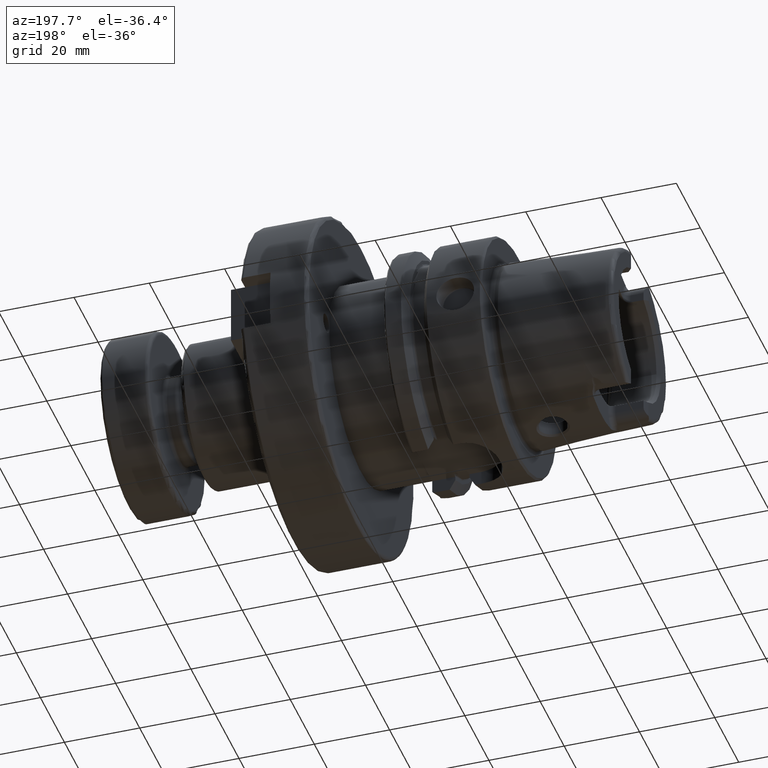
[diagram: clean part render]
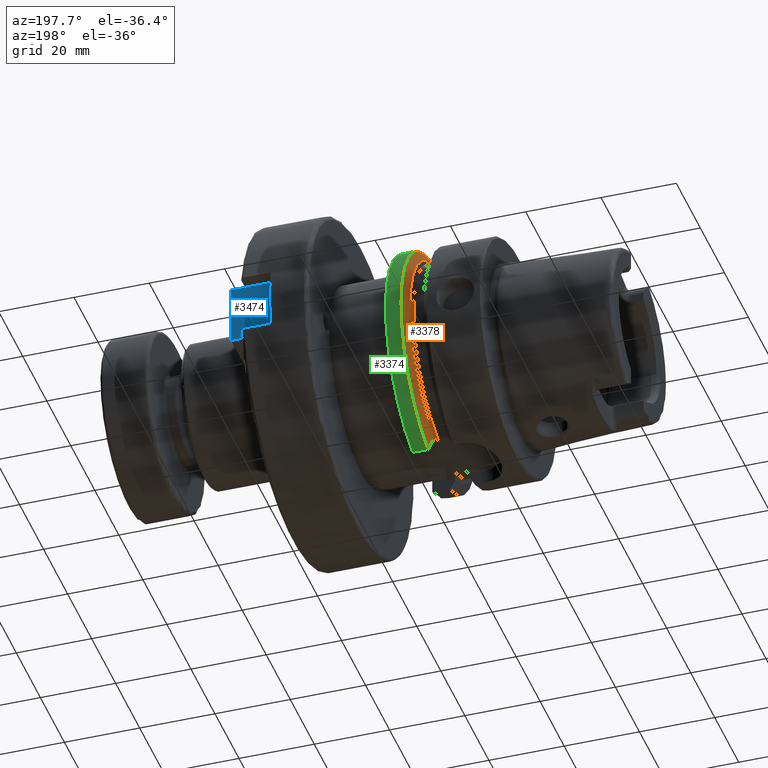
[diagram: same view with three faces highlighted in distinct colors, each labeled with its STEP entity id]
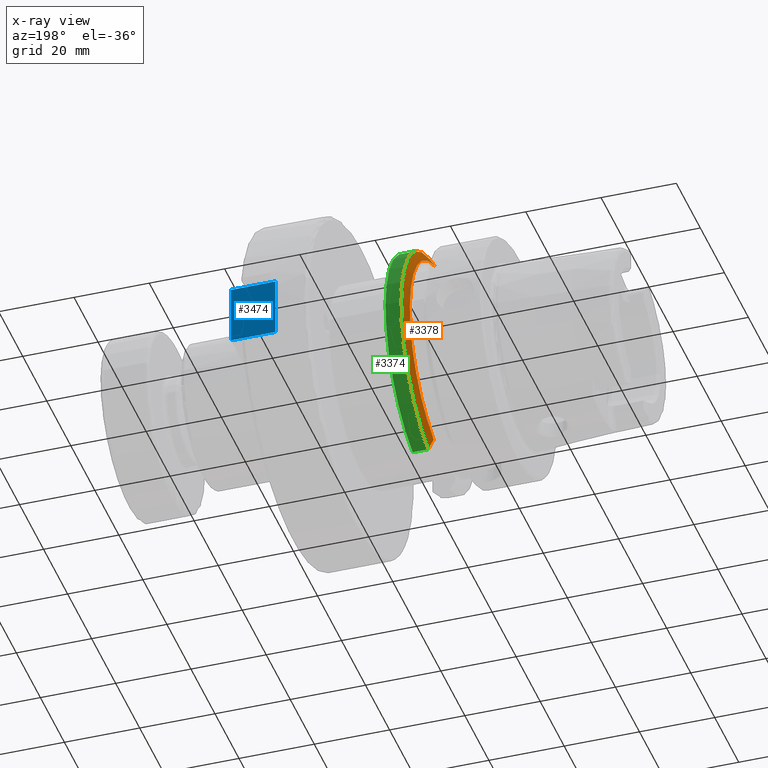
[diagram: x-ray of the same camera — body ghosted, the three highlighted faces saturated]
A machine part, auxiliary view with three faces highlighted in distinct colors.
The next image is the same camera in x-ray (body ghosted, the three faces saturated) — at least one of them is partly hidden behind the body in this view.
Their STEP definitions:

[orange] entity #3378 — the highlighted conical surface has half-angle 60 deg.
#62=(
BOUNDED_CURVE()
B_SPLINE_CURVE(2,(#6473,#6474,#6475),.UNSPECIFIED.,.F.,.F.)
B_SPLINE_CURVE_WITH_KNOTS((3,3),(0.,0.311314369989023),.UNSPECIFIED.)
CURVE()
GEOMETRIC_REPRESENTATION_ITEM()
RATIONAL_B_SPLINE_CURVE((1.,1.00102053193238,1.))
REPRESENTATION_ITEM('')
);
#65=(
BOUNDED_CURVE()
B_SPLINE_CURVE(2,(#6670,#6671,#6672),.UNSPECIFIED.,.F.,.F.)
B_SPLINE_CURVE_WITH_KNOTS((3,3),(0.,0.308905667770379),.UNSPECIFIED.)
CURVE()
GEOMETRIC_REPRESENTATION_ITEM()
RATIONAL_B_SPLINE_CURVE((1.,1.00099999355179,1.))
REPRESENTATION_ITEM('')
);
#99=CONICAL_SURFACE('',#3810,30.1987976320958,1.0471975511966);
#342=CIRCLE('',#3803,31.5);
#346=CIRCLE('',#3811,28.8975952641916);
#543=FACE_OUTER_BOUND('',#760,.T.);
#760=EDGE_LOOP('',(#2698,#2699,#2700,#2701));
#1527=VERTEX_POINT('',#6470);
#1528=VERTEX_POINT('',#6472);
#1554=VERTEX_POINT('',#6654);
#1557=VERTEX_POINT('',#6668);
#1933=EDGE_CURVE('',#1528,#1527,#62,.T.);
#1973=EDGE_CURVE('',#1528,#1554,#342,.T.);
#1980=EDGE_CURVE('',#1527,#1557,#346,.T.);
#1981=EDGE_CURVE('',#1557,#1554,#65,.T.);
#2698=ORIENTED_EDGE('',*,*,#1933,.T.);
#2699=ORIENTED_EDGE('',*,*,#1980,.T.);
#2700=ORIENTED_EDGE('',*,*,#1981,.T.);
#2701=ORIENTED_EDGE('',*,*,#1973,.F.);
#3378=ADVANCED_FACE('',(#543),#99,.T.);
#3803=AXIS2_PLACEMENT_3D('',#6655,#4558,#4559);
#3810=AXIS2_PLACEMENT_3D('',#6667,#4575,#4576);
#3811=AXIS2_PLACEMENT_3D('',#6669,#4577,#4578);
#4558=DIRECTION('center_axis',(1.,0.,0.));
#4559=DIRECTION('ref_axis',(0.,0.,-1.));
#4575=DIRECTION('center_axis',(1.,0.,0.));
#4576=DIRECTION('ref_axis',(0.,1.,0.));
#4577=DIRECTION('center_axis',(1.,0.,0.));
#4578=DIRECTION('ref_axis',(0.,0.,-1.));
#6470=CARTESIAN_POINT('',(19.875,9.,-27.4603534582684));
#6472=CARTESIAN_POINT('',(21.3774990747593,9.,-30.1869176962472));
#6473=CARTESIAN_POINT('Ctrl Pts',(21.3774990747593,9.,-30.1869176962472));
#6474=CARTESIAN_POINT('Ctrl Pts',(20.5907174110267,9.,-28.7648946319029));
#6475=CARTESIAN_POINT('Ctrl Pts',(19.875,9.,-27.4603534582684));
#6654=CARTESIAN_POINT('',(21.3774990747593,8.,30.4671954731642));
#6655=CARTESIAN_POINT('Origin',(21.3774990747593,0.,0.));
#6667=CARTESIAN_POINT('Origin',(20.6262495373797,0.,0.));
#6668=CARTESIAN_POINT('',(19.875,8.,27.7681654426977));
#6669=CARTESIAN_POINT('Origin',(19.875,0.,0.));
#6670=CARTESIAN_POINT('Ctrl Pts',(19.875,8.,27.7681654426977));
#6671=CARTESIAN_POINT('Ctrl Pts',(20.5914314297926,8.,29.0595327079868));
#6672=CARTESIAN_POINT('Ctrl Pts',(21.3774990747593,8.,30.4671954731642));

[blue] entity #3474 — the highlighted planar face has unit normal (-0, 1, -0).
#639=FACE_OUTER_BOUND('',#866,.T.);
#866=EDGE_LOOP('',(#3171,#3172,#3173,#3174));
#1063=LINE('',#7160,#1262);
#1064=LINE('',#7162,#1263);
#1065=LINE('',#7164,#1264);
#1066=LINE('',#7165,#1265);
#1262=VECTOR('',#5040,10.);
#1263=VECTOR('',#5041,10.);
#1264=VECTOR('',#5042,10.);
#1265=VECTOR('',#5043,10.);
#1662=VERTEX_POINT('',#7158);
#1663=VERTEX_POINT('',#7159);
#1664=VERTEX_POINT('',#7161);
#1665=VERTEX_POINT('',#7163);
#2167=EDGE_CURVE('',#1662,#1663,#1063,.T.);
#2168=EDGE_CURVE('',#1663,#1664,#1064,.T.);
#2169=EDGE_CURVE('',#1665,#1664,#1065,.T.);
#2170=EDGE_CURVE('',#1662,#1665,#1066,.T.);
#3171=ORIENTED_EDGE('',*,*,#2167,.T.);
#3172=ORIENTED_EDGE('',*,*,#2168,.T.);
#3173=ORIENTED_EDGE('',*,*,#2169,.F.);
#3174=ORIENTED_EDGE('',*,*,#2170,.F.);
#3274=PLANE('',#4005);
#3474=ADVANCED_FACE('',(#639),#3274,.T.);
#4005=AXIS2_PLACEMENT_3D('',#7157,#5038,#5039);
#5038=DIRECTION('center_axis',(1.39914684892899E-16,0.,-1.));
#5039=DIRECTION('ref_axis',(-1.,0.,-1.39914684892899E-16));
#5040=DIRECTION('',(-1.,0.,-1.39914684892899E-16));
#5041=DIRECTION('',(0.,1.,0.));
#5042=DIRECTION('',(-1.,0.,-1.39914684892899E-16));
#5043=DIRECTION('',(0.,1.,0.));
#7157=CARTESIAN_POINT('Origin',(7.935,0.,-10.565));
#7158=CARTESIAN_POINT('',(7.935,0.,-10.565));
#7159=CARTESIAN_POINT('',(-7.935,0.,-10.565));
#7160=CARTESIAN_POINT('',(7.935,0.,-10.565));
#7161=CARTESIAN_POINT('',(-7.935,11.8,-10.565));
#7162=CARTESIAN_POINT('',(-7.935,0.,-10.565));
#7163=CARTESIAN_POINT('',(7.935,11.8,-10.565));
#7164=CARTESIAN_POINT('',(7.935,11.8,-10.565));
#7165=CARTESIAN_POINT('',(7.935,0.,-10.565));

[green] entity #3374 — the highlighted cylindrical surface (partial cylindrical patch) has radius 31.5 mm, axis along (1, 0, 0).
#175=CYLINDRICAL_SURFACE('',#3802,31.5);
#340=CIRCLE('',#3799,31.5);
#342=CIRCLE('',#3803,31.5);
#539=FACE_OUTER_BOUND('',#756,.T.);
#756=EDGE_LOOP('',(#2682,#2683,#2684,#2685));
#973=LINE('',#6476,#1172);
#987=LINE('',#6656,#1186);
#1172=VECTOR('',#4498,10.);
#1186=VECTOR('',#4560,10.);
#1524=VERTEX_POINT('',#6452);
#1528=VERTEX_POINT('',#6472);
#1553=VERTEX_POINT('',#6639);
#1554=VERTEX_POINT('',#6654);
#1934=EDGE_CURVE('',#1524,#1528,#973,.T.);
#1970=EDGE_CURVE('',#1524,#1553,#340,.T.);
#1973=EDGE_CURVE('',#1528,#1554,#342,.T.);
#1974=EDGE_CURVE('',#1554,#1553,#987,.T.);
#2682=ORIENTED_EDGE('',*,*,#1934,.T.);
#2683=ORIENTED_EDGE('',*,*,#1973,.T.);
#2684=ORIENTED_EDGE('',*,*,#1974,.T.);
#2685=ORIENTED_EDGE('',*,*,#1970,.F.);
#3374=ADVANCED_FACE('',(#539),#175,.T.);
#3799=AXIS2_PLACEMENT_3D('',#6640,#4550,#4551);
#3802=AXIS2_PLACEMENT_3D('',#6653,#4556,#4557);
#3803=AXIS2_PLACEMENT_3D('',#6655,#4558,#4559);
#4498=DIRECTION('',(-1.,0.,0.));
#4550=DIRECTION('center_axis',(1.,0.,0.));
#4551=DIRECTION('ref_axis',(0.,0.,-1.));
#4556=DIRECTION('center_axis',(1.,0.,0.));
#4557=DIRECTION('ref_axis',(0.,1.,0.));
#4558=DIRECTION('center_axis',(1.,0.,0.));
#4559=DIRECTION('ref_axis',(0.,0.,-1.));
#4560=DIRECTION('',(1.,0.,0.));
#6452=CARTESIAN_POINT('',(25.5,9.,-30.1869176962472));
#6472=CARTESIAN_POINT('',(21.3774990747593,9.,-30.1869176962472));
#6476=CARTESIAN_POINT('',(23.4387495373797,9.,-30.1869176962472));
#6639=CARTESIAN_POINT('',(25.5,8.,30.4671954731642));
#6640=CARTESIAN_POINT('Origin',(25.5,0.,0.));
#6653=CARTESIAN_POINT('Origin',(23.4387495373797,0.,0.));
#6654=CARTESIAN_POINT('',(21.3774990747593,8.,30.4671954731642));
#6655=CARTESIAN_POINT('Origin',(21.3774990747593,0.,0.));
#6656=CARTESIAN_POINT('',(23.4387495373797,8.,30.4671954731642));